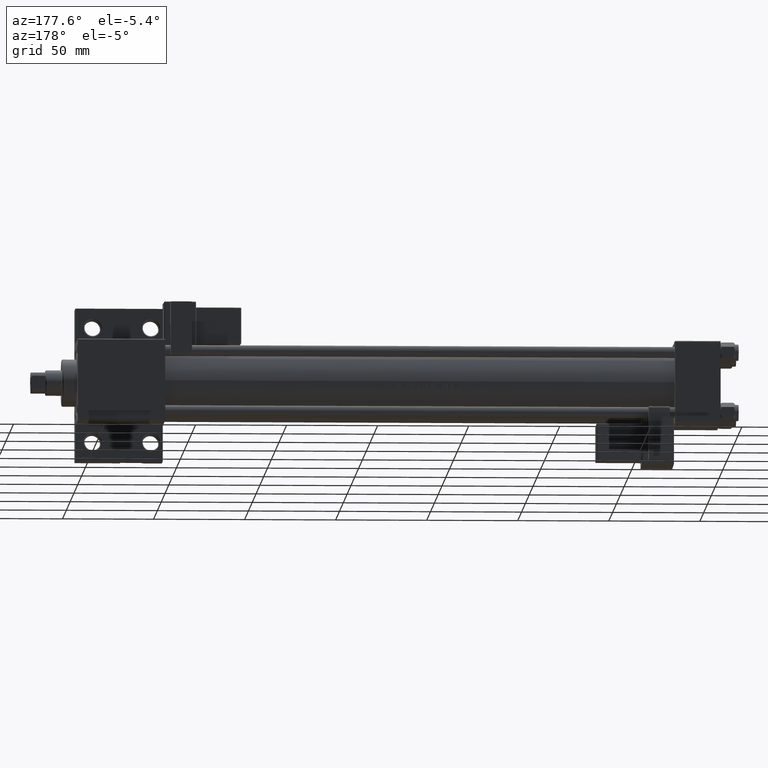
[diagram: clean part render]
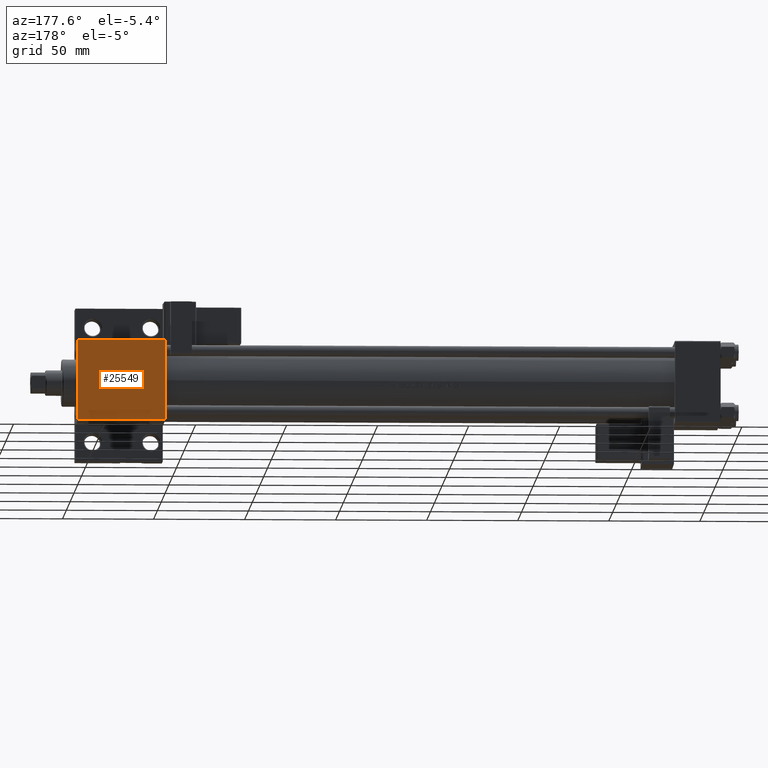
[diagram: same view with one face highlighted and labeled with its STEP entity id]
A machine part, auxiliary view. The second image highlights one B-rep face of the part: STEP entity #25549.
In plain terms, the highlighted planar face has unit normal (0, -1, -0).
Its self-contained STEP definition (entity closure, byte-faithful):
#211 = LINE ( 'NONE', #49505, #13136 ) ;
#1135 = LINE ( 'NONE', #43826, #1254 ) ;
#1212 = AXIS2_PLACEMENT_3D ( 'NONE', #49827, #29852, #21763 ) ;
#1254 = VECTOR ( 'NONE', #35989, 1000.000000000000000 ) ;
#6254 = CARTESIAN_POINT ( 'NONE',  ( 353.0000000000000568, 22.50000000000000355, 22.50000000000000355 ) ) ;
#6302 = EDGE_CURVE ( 'NONE', #18287, #16149, #32279, .T. ) ;
#8130 = ORIENTED_EDGE ( 'NONE', *, *, #26723, .T. ) ;
#9170 = VERTEX_POINT ( 'NONE', #15371 ) ;
#10491 = CARTESIAN_POINT ( 'NONE',  ( 305.0000000000000568, 21.99999999999994671, 22.50000000000000355 ) ) ;
#11962 = DIRECTION ( 'NONE',  ( 0.000000000000000000, -1.000000000000000000, -2.312964634635742957E-16 ) ) ;
#13136 = VECTOR ( 'NONE', #42151, 1000.000000000000000 ) ;
#15371 = CARTESIAN_POINT ( 'NONE',  ( 305.0000000000000568, -21.99999999999992539, 22.49999999999999289 ) ) ;
#16149 = VERTEX_POINT ( 'NONE', #25913 ) ;
#16211 = VECTOR ( 'NONE', #24434, 1000.000000000000000 ) ;
#16314 = ORIENTED_EDGE ( 'NONE', *, *, #6302, .F. ) ;
#18287 = VERTEX_POINT ( 'NONE', #47338 ) ;
#18710 = PLANE ( 'NONE',  #1212 ) ;
#20926 = EDGE_LOOP ( 'NONE', ( #16314, #26525, #35924, #8130 ) ) ;
#21483 = EDGE_CURVE ( 'NONE', #18287, #29259, #211, .T. ) ;
#21763 = DIRECTION ( 'NONE',  ( 0.000000000000000000, 1.000000000000000000, 2.312964634635742957E-16 ) ) ;
#22245 = FACE_OUTER_BOUND ( 'NONE', #20926, .T. ) ;
#22636 = VECTOR ( 'NONE', #11962, 1000.000000000000000 ) ;
#24434 = DIRECTION ( 'NONE',  ( 0.000000000000000000, -1.000000000000000000, -2.312964634635742957E-16 ) ) ;
#25549 = ADVANCED_FACE ( 'NONE', ( #22245 ), #18710, .F. ) ;
#25913 = CARTESIAN_POINT ( 'NONE',  ( 353.0000000000000568, -21.99999999999992539, 22.49999999999999289 ) ) ;
#26525 = ORIENTED_EDGE ( 'NONE', *, *, #21483, .T. ) ;
#26723 = EDGE_CURVE ( 'NONE', #9170, #16149, #1135, .T. ) ;
#29259 = VERTEX_POINT ( 'NONE', #10491 ) ;
#29852 = DIRECTION ( 'NONE',  ( 0.000000000000000000, 2.312964634635742957E-16, -1.000000000000000000 ) ) ;
#31154 = LINE ( 'NONE', #46595, #22636 ) ;
#32279 = LINE ( 'NONE', #6254, #16211 ) ;
#35924 = ORIENTED_EDGE ( 'NONE', *, *, #42714, .T. ) ;
#35989 = DIRECTION ( 'NONE',  ( 1.000000000000000000, 0.000000000000000000, 0.000000000000000000 ) ) ;
#42151 = DIRECTION ( 'NONE',  ( -1.000000000000000000, 0.000000000000000000, 0.000000000000000000 ) ) ;
#42714 = EDGE_CURVE ( 'NONE', #29259, #9170, #31154, .T. ) ;
#43826 = CARTESIAN_POINT ( 'NONE',  ( 353.0000000000000568, -21.99999999999993960, 22.49999999999999289 ) ) ;
#46595 = CARTESIAN_POINT ( 'NONE',  ( 305.0000000000000568, 22.50000000000000355, 22.50000000000000355 ) ) ;
#47338 = CARTESIAN_POINT ( 'NONE',  ( 353.0000000000000568, 21.99999999999994671, 22.50000000000000355 ) ) ;
#49505 = CARTESIAN_POINT ( 'NONE',  ( 305.0000000000000568, 21.99999999999994671, 22.50000000000000355 ) ) ;
#49827 = CARTESIAN_POINT ( 'NONE',  ( 353.0000000000000568, 22.50000000000000355, 22.50000000000000355 ) ) ;